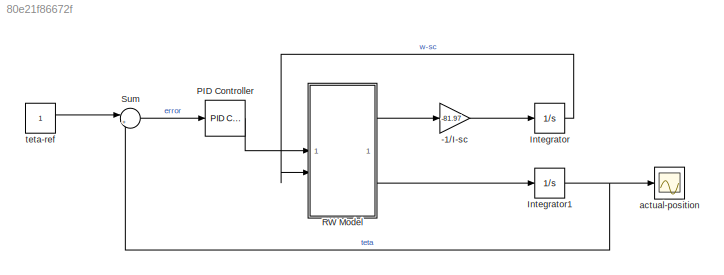
MODEL slx_80e21f86672f
KIND model
CONFIG AbsTol = auto
CONFIG EnableMultiTasking = off
CONFIG FixedStep = auto
CONFIG MaxStep = auto
CONFIG MinStep = auto
CONFIG RelTol = 1e-3
CONFIG SampleTimeConstraint = Unconstrained
CONFIG SolverName = VariableStepAuto
CONFIG StartTime = 0.0
CONFIG StopTime = 50
BLOCK [Gain] -1//I-sc
  Gain = -81.97
BLOCK [Integrator] Integrator
BLOCK [Integrator] Integrator1
BLOCK [Reference] PID Controller  REF=slpidlib/PID Controller
  LibrarySourceBlock = simulink/Continuous/PID Controller
  SourceBlock = slpidlib/PID Controller
  SourceType = PID 1dof
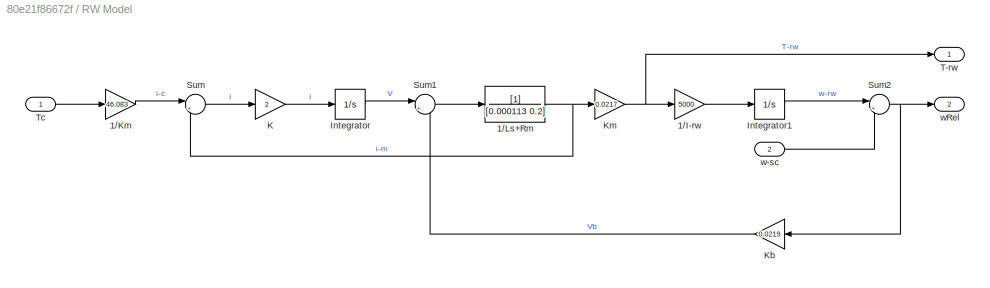
BLOCK [SubSystem] RW Model
BLOCK [Gain] RW Model/1//I-rw
  Gain = 5000
BLOCK [Gain] RW Model/1//Km
  Gain = 46.083
BLOCK [TransferFcn] RW Model/1//Ls+Rm
  Denominator = [0.000113 0.2]
BLOCK [Integrator] RW Model/Integrator
BLOCK [Integrator] RW Model/Integrator1
BLOCK [Gain] RW Model/K
  Gain = 2
BLOCK [Gain] RW Model/Kb
  Gain = 0.0219
BLOCK [Gain] RW Model/Km
  Gain = 0.0217
BLOCK [Sum] RW Model/Sum
  Inputs = |+-
BLOCK [Sum] RW Model/Sum1
  Inputs = |+-
BLOCK [Sum] RW Model/Sum2
  Inputs = |+-
BLOCK [Outport] RW Model/T-rw
BLOCK [Inport] RW Model/Tc
BLOCK [Inport] RW Model/w-sc
  Port = 2
BLOCK [Outport] RW Model/wRel
  Port = 2
BLOCK [Sum] Sum
  Inputs = |+-
BLOCK [Scope] actual-position
  Floating = off
  NumInputPorts = 1
  ScopeSpecificationString = Simulink.scopes.TimeScopeBlockCfg('CurrentConfiguration', extmgr.ConfigurationSet(extmgr.Configuration('Core','General UI',true),extmgr.Configuration('Core','Source UI',true),extmgr.Configuration('Sources','WiredSimulink',true,'DataLoggingVariableName','ScopeData1'),extmgr.Configuration('Visuals','Time Domain',true,'SerializedDisplays',{struct('MinYLimReal','-0.18625','MaxYLimReal','1.67627','YLab...<+1392ch>
BLOCK [Constant] teta-ref
LINE -1//I-sc:1 -> Integrator:1
NET Integrator1:1 -> Sum:2, actual-position:1
LINE Integrator:1 -> RW Model:2
LINE PID Controller:1 -> RW Model:1
LINE RW Model/1//I-rw:1 -> RW Model/Integrator1:1
LINE RW Model/1//Km:1 -> RW Model/Sum:1
NET RW Model/1//Ls+Rm:1 -> RW Model/Km:1, RW Model/Sum:2
LINE RW Model/Integrator1:1 -> RW Model/Sum2:1
LINE RW Model/Integrator:1 -> RW Model/Sum1:1
LINE RW Model/K:1 -> RW Model/Integrator:1
LINE RW Model/Kb:1 -> RW Model/Sum1:2
NET RW Model/Km:1 -> RW Model/1//I-rw:1, RW Model/T-rw:1
LINE RW Model/Sum1:1 -> RW Model/1//Ls+Rm:1
NET RW Model/Sum2:1 -> RW Model/Kb:1, RW Model/wRel:1
LINE RW Model/Sum:1 -> RW Model/K:1
LINE RW Model/Tc:1 -> RW Model/1//Km:1
LINE RW Model/w-sc:1 -> RW Model/Sum2:2
LINE RW Model:1 -> -1//I-sc:1
LINE RW Model:2 -> Integrator1:1
LINE Sum:1 -> PID Controller:1
LINE teta-ref:1 -> Sum:1
note: NET lines group one-source signal fan-out (src -> all destinations, sorted); 1:1 wires keep LINE
